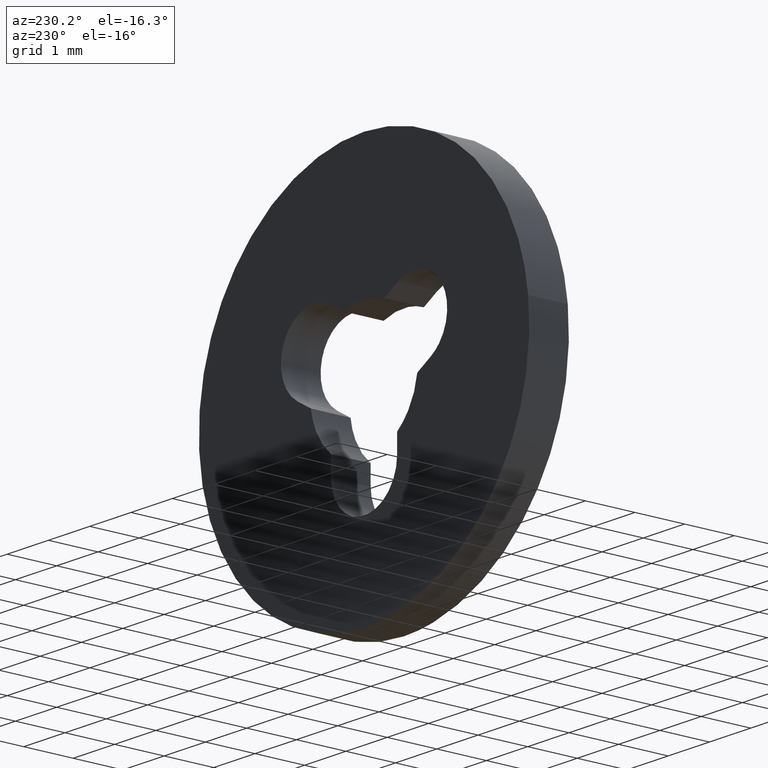
[diagram: clean part render]
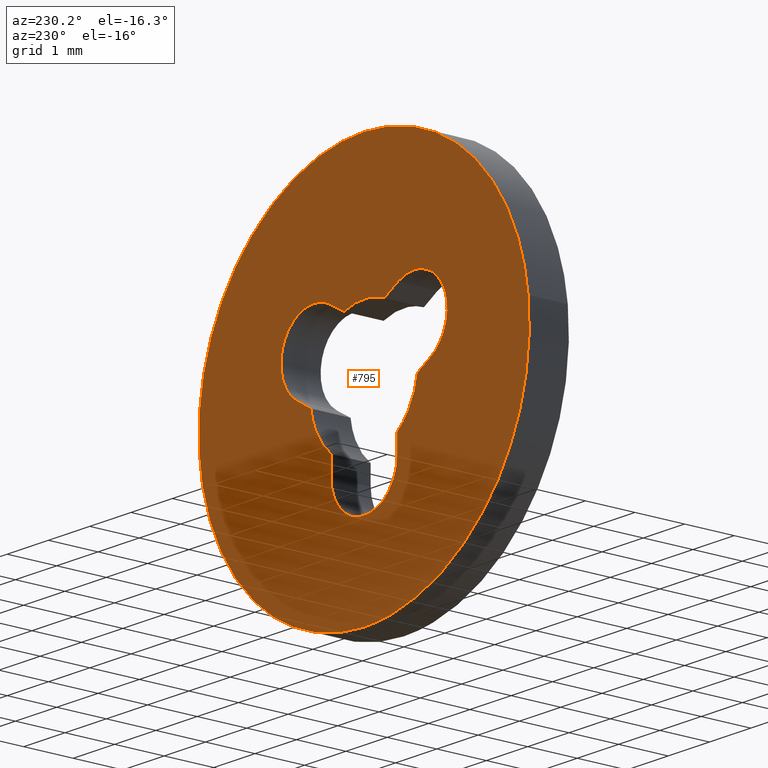
[diagram: same view with one face highlighted and labeled with its STEP entity id]
A machine part, auxiliary view. The second image highlights one B-rep face of the part: STEP entity #795.
In plain terms, the highlighted face is a freeform B-spline surface patch.
Its self-contained STEP definition (entity closure, byte-faithful):
#85=CARTESIAN_POINT('',(-3.972038402399532,0.800000000000023,0.472134440447886));
#86=VERTEX_POINT('',#85);
#92=CARTESIAN_POINT('',(0.0,0.800000000000023,-4.0));
#93=VERTEX_POINT('',#92);
#94=CARTESIAN_POINT('',(-3.972038402399532,0.800000000000023,0.472134440447886));
#95=CARTESIAN_POINT('',(-4.000000000000000,0.800000000000023,0.236895216312969));
#96=CARTESIAN_POINT('',(-4.0,0.800000000000023,0.0));
#97=CARTESIAN_POINT('',(-4.000000000000000,0.800000000000023,-4.000000000000000));
#98=CARTESIAN_POINT('',(0.0,0.800000000000023,-4.0));
#106=(BOUNDED_CURVE()B_SPLINE_CURVE(2,(#94,#95,#96,#97,#98),.UNSPECIFIED.,.F.,.U.)B_SPLINE_CURVE_WITH_KNOTS((3,2,3),(0.229562579808786,0.250000000000000,0.500000000000000),.UNSPECIFIED.)CURVE()GEOMETRIC_REPRESENTATION_ITEM()RATIONAL_B_SPLINE_CURVE((0.956026962526900,0.976056072863809,1.0,0.707106781186548,1.0))REPRESENTATION_ITEM(''));
#107=EDGE_CURVE('',#86,#93,#106,.T.);
#109=CARTESIAN_POINT('',(3.992539279994037,0.800000000000023,-0.244192747031311));
#110=VERTEX_POINT('',#109);
#111=CARTESIAN_POINT('',(0.0,0.800000000000023,-4.0));
#112=CARTESIAN_POINT('',(3.762825600026705,0.800000000000023,-4.0));
#113=CARTESIAN_POINT('',(3.992539279994037,0.800000000000023,-0.244192747031311));
#121=(BOUNDED_CURVE()B_SPLINE_CURVE(2,(#111,#112,#113),.UNSPECIFIED.,.F.,.U.)B_SPLINE_CURVE_WITH_KNOTS((3,3),(0.500000000000000,0.739333023226263),.UNSPECIFIED.)CURVE()GEOMETRIC_REPRESENTATION_ITEM()RATIONAL_B_SPLINE_CURVE((1.0,0.719603921835620,0.976072172374189))REPRESENTATION_ITEM(''));
#122=EDGE_CURVE('',#93,#110,#121,.T.);
#196=CARTESIAN_POINT('',(0.0,0.800000000000023,4.0));
#197=VERTEX_POINT('',#196);
#198=CARTESIAN_POINT('',(3.992539279994037,0.800000000000023,-0.244192747031311));
#199=CARTESIAN_POINT('',(4.0,0.800000000000023,-0.122210345662012));
#200=CARTESIAN_POINT('',(4.0,0.800000000000023,0.0));
#201=CARTESIAN_POINT('',(4.000000000000000,0.800000000000023,4.000000000000000));
#202=CARTESIAN_POINT('',(0.0,0.800000000000023,4.0));
#210=(BOUNDED_CURVE()B_SPLINE_CURVE(2,(#198,#199,#200,#201,#202),.UNSPECIFIED.,.F.,.U.)B_SPLINE_CURVE_WITH_KNOTS((3,2,3),(0.739333023226263,0.750000000000000,1.0),.UNSPECIFIED.)CURVE()GEOMETRIC_REPRESENTATION_ITEM()RATIONAL_B_SPLINE_CURVE((0.976072172374189,0.987502859350927,1.0,0.707106781186548,1.0))REPRESENTATION_ITEM(''));
#211=EDGE_CURVE('',#110,#197,#210,.T.);
#213=CARTESIAN_POINT('',(0.0,0.800000000000023,4.0));
#214=CARTESIAN_POINT('',(-3.552700353974541,0.800000000000023,4.0));
#215=CARTESIAN_POINT('',(-3.972038402399532,0.800000000000023,0.472134440447886));
#223=(BOUNDED_CURVE()B_SPLINE_CURVE(2,(#213,#214,#215),.UNSPECIFIED.,.F.,.U.)B_SPLINE_CURVE_WITH_KNOTS((3,3),(0.0,0.229562579808786),.UNSPECIFIED.)CURVE()GEOMETRIC_REPRESENTATION_ITEM()RATIONAL_B_SPLINE_CURVE((1.0,0.731050708322738,0.956026962526900))REPRESENTATION_ITEM(''));
#224=EDGE_CURVE('',#197,#86,#223,.T.);
#244=CARTESIAN_POINT('',(1.612399990874480,0.800000000000000,0.007099994732456));
#245=VERTEX_POINT('',#244);
#251=CARTESIAN_POINT('',(1.287408869895384,0.800000000000023,-0.180494880023472));
#252=VERTEX_POINT('',#251);
#253=CARTESIAN_POINT('',(1.287408869895384,0.800000000000023,-0.180494880023472));
#254=CARTESIAN_POINT('',(1.612399990874480,0.800000000000000,0.007099994732456));
#255=QUASI_UNIFORM_CURVE('',1,(#253,#254),.UNSPECIFIED.,.F.,.U.);
#256=EDGE_CURVE('',#252,#245,#255,.T.);
#296=CARTESIAN_POINT('',(0.800000000000010,0.800000000000023,-1.024700000000000));
#297=VERTEX_POINT('',#296);
#298=CARTESIAN_POINT('',(0.800000000000010,0.800000000000023,-1.024700000000000));
#299=CARTESIAN_POINT('',(1.214413189115293,0.800000000000023,-0.701158403634233));
#300=CARTESIAN_POINT('',(1.287408869895384,0.800000000000023,-0.180494880023472));
#308=(BOUNDED_CURVE()B_SPLINE_CURVE(2,(#298,#299,#300),.UNSPECIFIED.,.F.,.U.)CURVE()GEOMETRIC_REPRESENTATION_ITEM()QUASI_UNIFORM_CURVE()RATIONAL_B_SPLINE_CURVE((1.0,0.927054981489884,1.0))REPRESENTATION_ITEM(''));
#309=EDGE_CURVE('',#297,#252,#308,.T.);
#332=CARTESIAN_POINT('',(0.799999999999988,0.800000000000023,-1.399999860373652));
#333=VERTEX_POINT('',#332);
#334=CARTESIAN_POINT('',(0.799999999999988,0.800000000000023,-1.399999860373652));
#335=CARTESIAN_POINT('',(0.800000000000010,0.800000000000023,-1.024700000000000));
#336=QUASI_UNIFORM_CURVE('',1,(#334,#335),.UNSPECIFIED.,.F.,.U.);
#337=EDGE_CURVE('',#333,#297,#336,.T.);
#385=CARTESIAN_POINT('',(-0.799999999999990,0.800000000000023,-1.400000000000000));
#386=VERTEX_POINT('',#385);
#387=CARTESIAN_POINT('',(-0.799999999999990,0.800000000000023,-1.400000000000000));
#388=CARTESIAN_POINT('',(-0.800000000000000,0.800000000000023,-1.861880246379778));
#389=CARTESIAN_POINT('',(-0.399999959693345,0.800000000000023,-2.092820346298607));
#390=CARTESIAN_POINT('',(0.000000080613311,0.800000000000023,-2.323760446217437));
#391=CARTESIAN_POINT('',(0.400000080613307,0.800000000000023,-2.092820276485431));
#392=CARTESIAN_POINT('',(0.800000080613303,0.800000000000023,-1.861880106753424));
#393=CARTESIAN_POINT('',(0.799999999999988,0.800000000000023,-1.399999860373652));
#401=(BOUNDED_CURVE()B_SPLINE_CURVE(2,(#387,#388,#389,#390,#391,#392,#393),.UNSPECIFIED.,.F.,.U.)B_SPLINE_CURVE_WITH_KNOTS((3,2,2,3),(0.0,0.333333333333333,0.666666666666667,1.0),.UNSPECIFIED.)CURVE()GEOMETRIC_REPRESENTATION_ITEM()RATIONAL_B_SPLINE_CURVE((1.0,0.866025389240027,1.0,0.866025389240027,1.0,0.866025389240027,1.0))REPRESENTATION_ITEM(''));
#402=EDGE_CURVE('',#386,#333,#401,.T.);
#425=CARTESIAN_POINT('',(-0.800002281232923,0.800000000000023,-1.024693295587572));
#426=VERTEX_POINT('',#425);
#427=CARTESIAN_POINT('',(-0.800002281232923,0.800000000000023,-1.024693295587572));
#428=CARTESIAN_POINT('',(-0.799999999999990,0.800000000000023,-1.400000000000000));
#429=QUASI_UNIFORM_CURVE('',1,(#427,#428),.UNSPECIFIED.,.F.,.U.);
#430=EDGE_CURVE('',#426,#386,#429,.T.);
#470=CARTESIAN_POINT('',(-1.287400062812804,0.800000000000023,-0.180557686819436));
#471=VERTEX_POINT('',#470);
#472=CARTESIAN_POINT('',(-1.287400062812805,0.800000000000023,-0.180557686819436));
#473=CARTESIAN_POINT('',(-1.214383390528302,0.800000000000023,-0.701176166936854));
#474=CARTESIAN_POINT('',(-0.800002281232923,0.800000000000023,-1.024693295587572));
#482=(BOUNDED_CURVE()B_SPLINE_CURVE(2,(#472,#473,#474),.UNSPECIFIED.,.F.,.U.)CURVE()GEOMETRIC_REPRESENTATION_ITEM()QUASI_UNIFORM_CURVE()RATIONAL_B_SPLINE_CURVE((1.0,0.927064980880653,1.0))REPRESENTATION_ITEM(''));
#483=EDGE_CURVE('',#471,#426,#482,.T.);
#506=CARTESIAN_POINT('',(-1.612500000000000,0.800000000000023,0.007099999999994));
#507=VERTEX_POINT('',#506);
#508=CARTESIAN_POINT('',(-1.612500000000000,0.800000000000023,0.007099999999994));
#509=CARTESIAN_POINT('',(-1.287400062812804,0.800000000000023,-0.180557686819436));
#510=QUASI_UNIFORM_CURVE('',1,(#508,#509),.UNSPECIFIED.,.F.,.U.);
#511=EDGE_CURVE('',#507,#471,#510,.T.);
#557=CARTESIAN_POINT('',(-0.817007166694730,0.800000000000023,1.395403062118780));
#558=VERTEX_POINT('',#557);
#559=CARTESIAN_POINT('',(-0.817007166694730,0.800000000000023,1.395403062118780));
#560=CARTESIAN_POINT('',(-1.510215076494561,0.800000000000023,1.789684260389432));
#561=CARTESIAN_POINT('',(-1.906699946760339,0.800000000000023,1.097734394308717));
#562=CARTESIAN_POINT('',(-2.303184817026117,0.800000000000023,0.405784528228002));
#563=CARTESIAN_POINT('',(-1.612499999999997,0.800000000000023,0.007099999999999));
#571=(BOUNDED_CURVE()B_SPLINE_CURVE(2,(#559,#560,#561,#562,#563),.UNSPECIFIED.,.F.,.U.)B_SPLINE_CURVE_WITH_KNOTS((3,2,3),(0.0,0.500000000000000,1.0),.UNSPECIFIED.)CURVE()GEOMETRIC_REPRESENTATION_ITEM()RATIONAL_B_SPLINE_CURVE((1.0,0.708230833594024,1.0,0.708230833594024,1.0))REPRESENTATION_ITEM(''));
#572=EDGE_CURVE('',#558,#507,#571,.T.);
#595=CARTESIAN_POINT('',(-0.487532842886897,0.800000000000023,1.205118968030384));
#596=VERTEX_POINT('',#595);
#597=CARTESIAN_POINT('',(-0.487532842886897,0.800000000000023,1.205118968030384));
#598=CARTESIAN_POINT('',(-0.817007166694730,0.800000000000023,1.395403062118780));
#599=QUASI_UNIFORM_CURVE('',1,(#597,#598),.UNSPECIFIED.,.F.,.U.);
#600=EDGE_CURVE('',#596,#558,#599,.T.);
#640=CARTESIAN_POINT('',(0.487474034111251,0.800000000000023,1.205142757546716));
#641=VERTEX_POINT('',#640);
#642=CARTESIAN_POINT('',(0.487474034111252,0.800000000000023,1.205142757546716));
#643=CARTESIAN_POINT('',(-0.000034216093908,0.800000000000023,1.402337332132885));
#644=CARTESIAN_POINT('',(-0.487532842886897,0.800000000000023,1.205118968030385));
#652=(BOUNDED_CURVE()B_SPLINE_CURVE(2,(#642,#643,#644),.UNSPECIFIED.,.F.,.U.)CURVE()GEOMETRIC_REPRESENTATION_ITEM()QUASI_UNIFORM_CURVE()RATIONAL_B_SPLINE_CURVE((1.0,0.927023740882519,1.0))REPRESENTATION_ITEM(''));
#653=EDGE_CURVE('',#641,#596,#652,.T.);
#676=CARTESIAN_POINT('',(0.816907166694791,0.800000000000023,1.395403062118820));
#677=VERTEX_POINT('',#676);
#678=CARTESIAN_POINT('',(0.816907166694791,0.800000000000023,1.395403062118820));
#679=CARTESIAN_POINT('',(0.487474034111251,0.800000000000023,1.205142757546716));
#680=QUASI_UNIFORM_CURVE('',1,(#678,#679),.UNSPECIFIED.,.F.,.U.);
#681=EDGE_CURVE('',#677,#641,#680,.T.);
#725=CARTESIAN_POINT('',(1.612399990874480,0.800000000000000,0.007099994732456));
#726=CARTESIAN_POINT('',(2.303084817699688,0.800000000000023,0.405784516489319));
#727=CARTESIAN_POINT('',(1.906599949379616,0.800000000000023,1.097734389737577));
#728=CARTESIAN_POINT('',(1.510115081059544,0.800000000000023,1.789684262985835));
#729=CARTESIAN_POINT('',(0.816907166694791,0.800000000000023,1.395403062118821));
#737=(BOUNDED_CURVE()B_SPLINE_CURVE(2,(#725,#726,#727,#728,#729),.UNSPECIFIED.,.F.,.U.)B_SPLINE_CURVE_WITH_KNOTS((3,2,3),(0.0,0.500000000000000,1.0),.UNSPECIFIED.)CURVE()GEOMETRIC_REPRESENTATION_ITEM()RATIONAL_B_SPLINE_CURVE((1.0,0.708230831269536,1.0,0.708230831269536,1.0))REPRESENTATION_ITEM(''));
#738=EDGE_CURVE('',#245,#677,#737,.T.);
#770=CARTESIAN_POINT('',(-4.399527157748937,0.800000000000000,4.399599984494448));
#771=CARTESIAN_POINT('',(4.399502624477148,0.800000000000000,4.399599984494448));
#772=CARTESIAN_POINT('',(-4.399527157748937,0.800000000000000,-4.399600199071169));
#773=CARTESIAN_POINT('',(4.399502624477148,0.800000000000000,-4.399600199071169));
#774=B_SPLINE_SURFACE_WITH_KNOTS('',1,1,((#770,#772),(#771,#773)),.UNSPECIFIED.,.F.,.F.,.U.,(2,2),(2,2),(0.0,8.799029782226086),(0.0,8.799200183565617),.UNSPECIFIED.);
#775=ORIENTED_EDGE('',*,*,#211,.F.);
#776=ORIENTED_EDGE('',*,*,#122,.F.);
#777=ORIENTED_EDGE('',*,*,#107,.F.);
#778=ORIENTED_EDGE('',*,*,#224,.F.);
#779=EDGE_LOOP('',(#775,#776,#777,#778));
#780=FACE_OUTER_BOUND('',#779,.T.);
#781=ORIENTED_EDGE('',*,*,#256,.T.);
#782=ORIENTED_EDGE('',*,*,#738,.T.);
#783=ORIENTED_EDGE('',*,*,#681,.T.);
#784=ORIENTED_EDGE('',*,*,#653,.T.);
#785=ORIENTED_EDGE('',*,*,#600,.T.);
#786=ORIENTED_EDGE('',*,*,#572,.T.);
#787=ORIENTED_EDGE('',*,*,#511,.T.);
#788=ORIENTED_EDGE('',*,*,#483,.T.);
#789=ORIENTED_EDGE('',*,*,#430,.T.);
#790=ORIENTED_EDGE('',*,*,#402,.T.);
#791=ORIENTED_EDGE('',*,*,#337,.T.);
#792=ORIENTED_EDGE('',*,*,#309,.T.);
#793=EDGE_LOOP('',(#781,#782,#783,#784,#785,#786,#787,#788,#789,#790,#791,#792));
#794=FACE_BOUND('',#793,.T.);
#795=ADVANCED_FACE('',(#780,#794),#774,.T.);